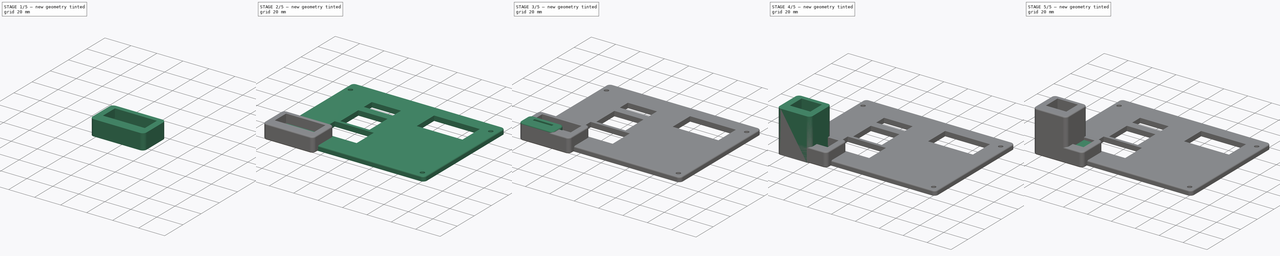
[diagram: build sequence overview — one tinted view per stage of 5, left to right]
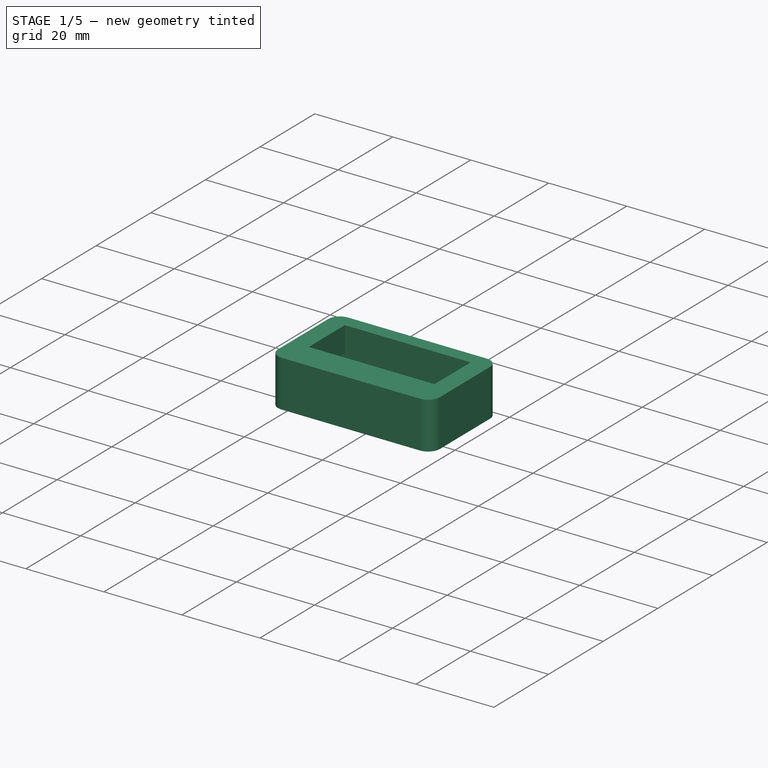
[diagram: stage 1 of 5 — iso view after this stage's code; geometry added in this stage tinted green]
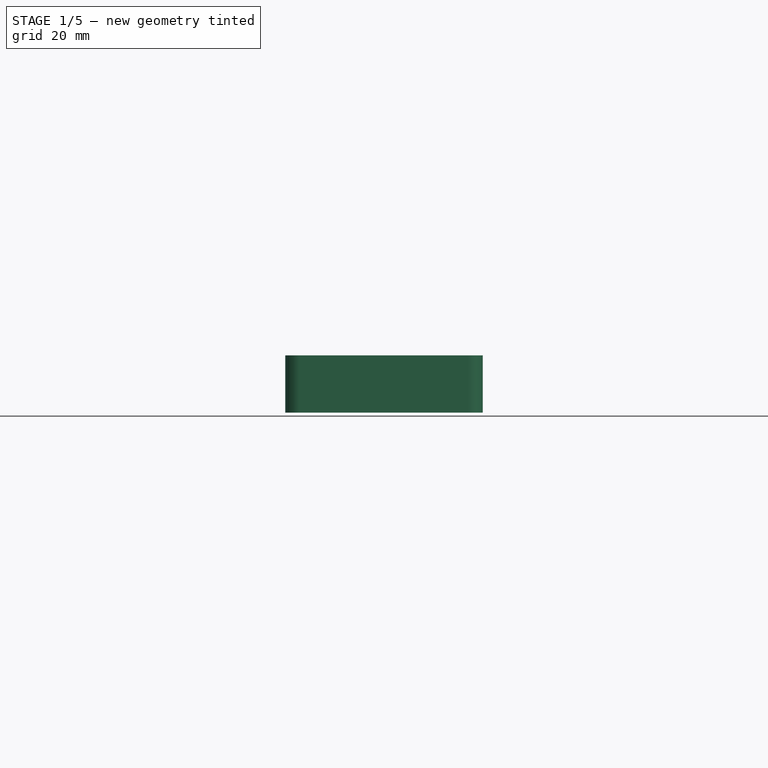
[diagram: stage 1 of 5 — front view after this stage's code; geometry added in this stage tinted green]
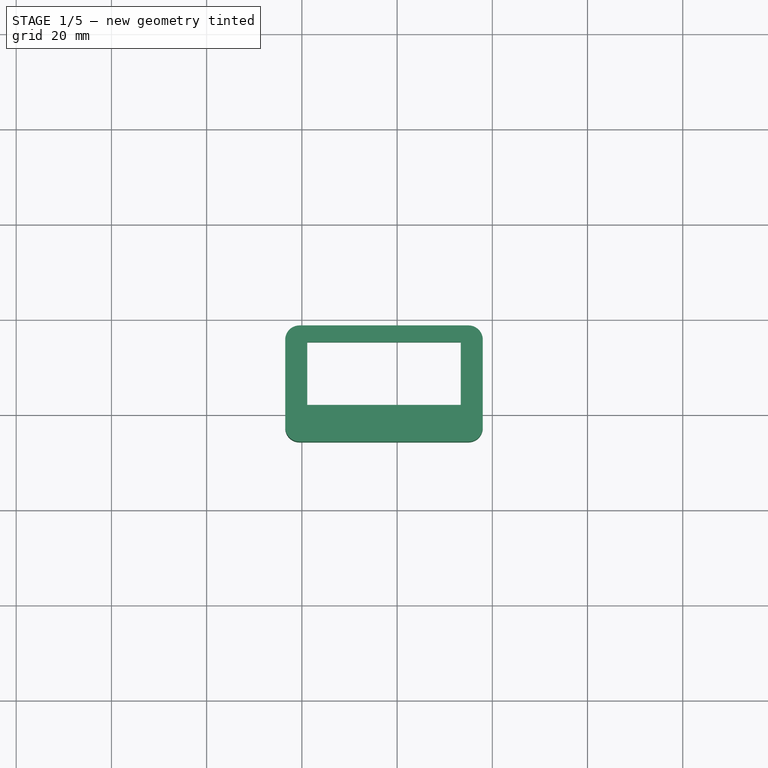
[diagram: stage 1 of 5 — top view after this stage's code; geometry added in this stage tinted green]
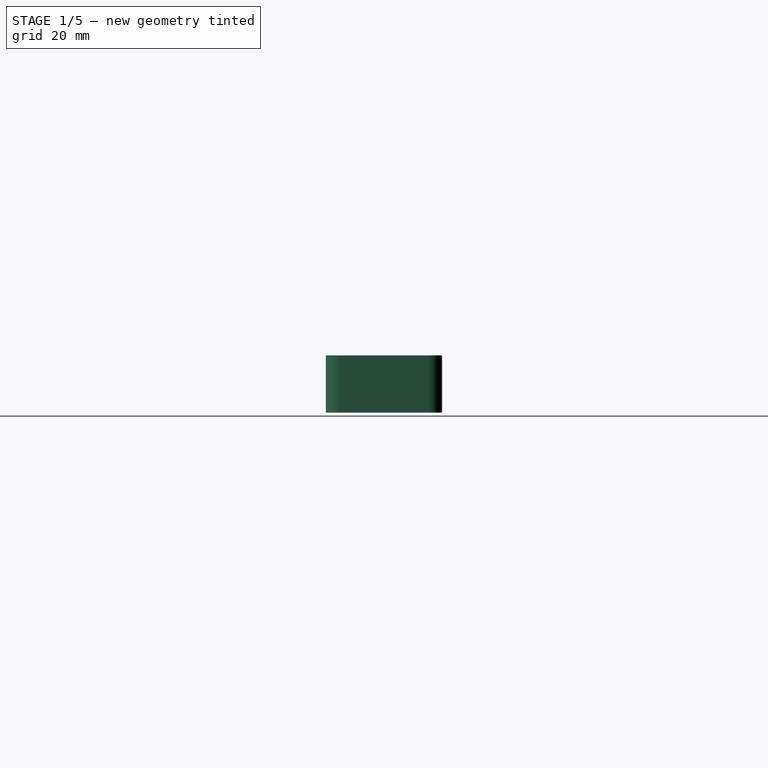
[diagram: stage 1 of 5 — right view after this stage's code; geometry added in this stage tinted green]
FCSTD DOCUMENT  (FreeCAD 0.19RUnknown)
Label: cover_rs232
License: All rights reserved
LicenseURL: http://en.wikipedia.org/wiki/All_rights_reserved
objects: Sketcher::SketchObject×16, PartDesign::Pocket×11, PartDesign::Fillet×10, PartDesign::Pad×5, PartDesign::Body×5, PartDesign::ShapeBinder×4
note: 77 computed .brp shape members not serialized (recipe doc carries the construction recipe); baked Part::Feature solids carry a one-line shape summary decoded from their .brp

FEATURE [PartDesign::Body] Body001  label="sd_body"
  Group = -> [Sketch005,Sketch006,Sketch007,Sketch008,Pad001,Pocket003,Pocket004,Pocket005,Fillet003,Fillet007]
  Origin = -> Origin001
  Placement = pos=(29.5,71.5,0) rot=(0,0,1;0rad)
  Tip = -> Fillet007
FEATURE [Sketcher::SketchObject] Sketch018  label="rs232_pcb"
  AttachmentOffset = pos=(0,0,10.5) rot=(0,0,1;0rad)
  MapMode = 5
  Placement = pos=(0,0,10.5) rot=(0,0,1;0rad)
  Support = -> [XY_Plane005]
  sketch-geometry (8):
    g0: LineSegment StartX=0 StartY=2 StartZ=0 EndX=0 EndY=0 EndZ=0
    g1: LineSegment StartX=0 StartY=0 StartZ=0 EndX=0.8 EndY=0 EndZ=0
    g2: LineSegment StartX=0.8 StartY=0 StartZ=0 EndX=0.8 EndY=-2.2 EndZ=0
    g3: LineSegment StartX=0.8 StartY=-2.2 StartZ=0 EndX=33.7 EndY=-2.2 EndZ=0
    g4: LineSegment StartX=33.7 StartY=-2.2 StartZ=0 EndX=33.7 EndY=0 EndZ=0
    g5: LineSegment StartX=33.7 StartY=0 StartZ=0 EndX=34.5 EndY=0 EndZ=0
    g6: LineSegment StartX=34.5 StartY=0 StartZ=0 EndX=34.5 EndY=2 EndZ=0
    g7: LineSegment StartX=34.5 StartY=2 StartZ=0 EndX=0 EndY=2 EndZ=0
  constraints (23):
    c: Coincident(g0,g7)
    c: Coincident(g0,g1)
    c: Coincident(g1,g2)
    c: Coincident(g2,g3)
    c: Coincident(g3,g4)
    c: Coincident(g4,g5)
    c: Coincident(g5,g6)
    c: Coincident(g6,g7)
    c: Horizontal(g1)
    c: Horizontal(g7)
    c: Horizontal(g5)
    c: Vertical(g0)
    c: Vertical(g2)
    c: Vertical(g6)
    c: Vertical(g4)
    c: DistanceX(g1,g1) = 0.8
    c: Equal(g1,g5)
    c: DistanceY(g0,g0) = 2
    c: Equal(g0,g6)
    c: DistanceX(g7,g7) = 34.5
    c: Coincident(g0,g-1)
    c: DistanceY(g2,g2) = 2.2
    c: Equal(g2,g4)
FEATURE [Sketcher::SketchObject] Sketch019  label="rs232_jack"
  ExternalGeometry = -> [Sketch018]
  MapMode = 5
  Support = -> [XY_Plane005]
  sketch-geometry (6):
    g0: LineSegment StartX=1.125 StartY=2 StartZ=0 EndX=33.375 EndY=2 EndZ=0
    g1: LineSegment StartX=33.375 StartY=2 StartZ=0 EndX=33.375 EndY=15.2 EndZ=0
    g2: LineSegment StartX=33.375 StartY=15.2 StartZ=0 EndX=1.125 EndY=15.2 EndZ=0
    g3: LineSegment StartX=1.125 StartY=15.2 StartZ=0 EndX=1.125 EndY=2 EndZ=0
    g4: GeomPoint X=17.25 Y=2 Z=0
    g5: GeomPoint X=17.25 Y=2 Z=0
  constraints (13):
    c: Coincident(g0,g1)
    c: Coincident(g1,g2)
    c: Coincident(g2,g3)
    c: Coincident(g3,g0)
    c: Horizontal(g0)
    c: Horizontal(g2)
    c: Vertical(g1)
    c: Vertical(g3)
    c: Symmetric(g-3,g-3,g5)
    c: Symmetric(g0,g0,g4)
    c: Coincident(g4,g5)
    c: DistanceX(g2,g2) = 32.25
    c: DistanceY(g1,g1) = 13.2
FEATURE [Sketcher::SketchObject] Sketch020  label="rs232_backcut"
  AttachmentOffset = pos=(0,0,5.5) rot=(0,0,1;0rad)
  ExternalGeometry = -> [Sketch019,Sketch018]
  MapMode = 5
  Placement = pos=(0,0,5.5) rot=(0,0,1;0rad)
  Support = -> [XY_Plane005]
  sketch-geometry (4):
    g0: LineSegment StartX=-1.5 StartY=-3.7 StartZ=0 EndX=36 EndY=-3.7 EndZ=0
    g1: LineSegment StartX=36 StartY=-3.7 StartZ=0 EndX=36 EndY=16.7 EndZ=0
    g2: LineSegment StartX=36 StartY=16.7 StartZ=0 EndX=-1.5 EndY=16.7 EndZ=0
    g3: LineSegment StartX=-1.5 StartY=16.7 StartZ=0 EndX=-1.5 EndY=-3.7 EndZ=0
  constraints (12):
    c: Coincident(g0,g1)
    c: Coincident(g1,g2)
    c: Coincident(g2,g3)
    c: Coincident(g3,g0)
    c: Horizontal(g0)
    c: Horizontal(g2)
    c: Vertical(g1)
    c: Vertical(g3)
    c: DistanceX(g0,g-1) = 1.5
    c: DistanceX(g-6,g0) = 1.5
    c: DistanceY(g0,g-4) = 1.5
    c: DistanceY(g-3,g2) = 1.5
FEATURE [Sketcher::SketchObject] Sketch017  label="rs232_surround"
  ExternalGeometry = -> [Sketch020]
  MapMode = 5
  Support = -> [XY_Plane005]
  sketch-geometry (4):
    g0: LineSegment StartX=-3.5 StartY=-5.7 StartZ=0 EndX=38 EndY=-5.7 EndZ=0
    g1: LineSegment StartX=38 StartY=-5.7 StartZ=0 EndX=38 EndY=18.7 EndZ=0
    g2: LineSegment StartX=38 StartY=18.7 StartZ=0 EndX=-3.5 EndY=18.7 EndZ=0
    g3: LineSegment StartX=-3.5 StartY=18.7 StartZ=0 EndX=-3.5 EndY=-5.7 EndZ=0
  constraints (12):
    c: Coincident(g0,g1)
    c: Coincident(g1,g2)
    c: Coincident(g2,g3)
    c: Coincident(g3,g0)
    c: Horizontal(g0)
    c: Horizontal(g2)
    c: Vertical(g1)
    c: Vertical(g3)
    c: DistanceX(g0,g-4) = 2
    c: DistanceY(g0,g-4) = 2
    c: DistanceY(g-3,g1) = 2
    c: DistanceX(g-3,g1) = 2
FEATURE [PartDesign::Pad] Pad005  label="rs232_surround_p"
  Direction = (1,1,1)
  Length = 12
  Length2 = 100
  Profile = -> Sketch017
  Type = 0
FEATURE [PartDesign::Pocket] Pocket011  label="rs232_backcut_c"
  BaseFeature = -> Pad005
  Length = 21.3
  Length2 = 100
  Profile = -> Sketch020
  Type = 1
FEATURE [PartDesign::Pocket] Pocket012  label="rs232_jack_c"
  BaseFeature = -> Pocket011
  Length = 5
  Length2 = 100
  Profile = -> Sketch019
  Reversed = true
  Type = 1
FEATURE [PartDesign::Pocket] Pocket013  label="rs232_pcb_c"
  BaseFeature = -> Pocket012
  Length = 12
  Length2 = 100
  Profile = -> Sketch018
  Type = 1
FEATURE [PartDesign::Fillet] Fillet010  label="rs232_edge_fillet"
  Base = -> Pocket013 [Edge2,Edge1,Edge8,Edge5]
  BaseFeature = -> Pocket013
  Radius = 3
  SupportTransform = false
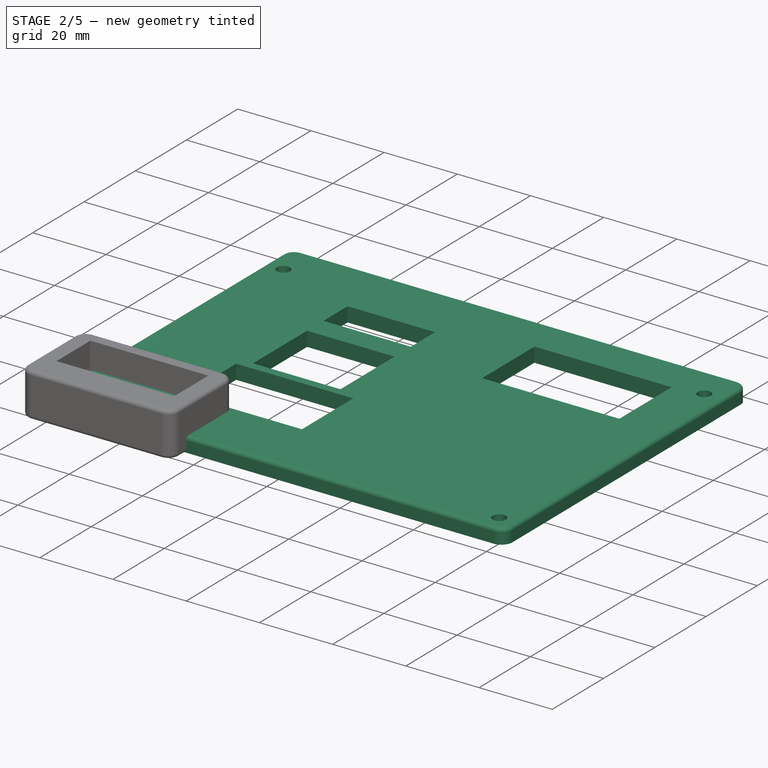
[diagram: stage 2 of 5 — iso view after this stage's code; geometry added in this stage tinted green]
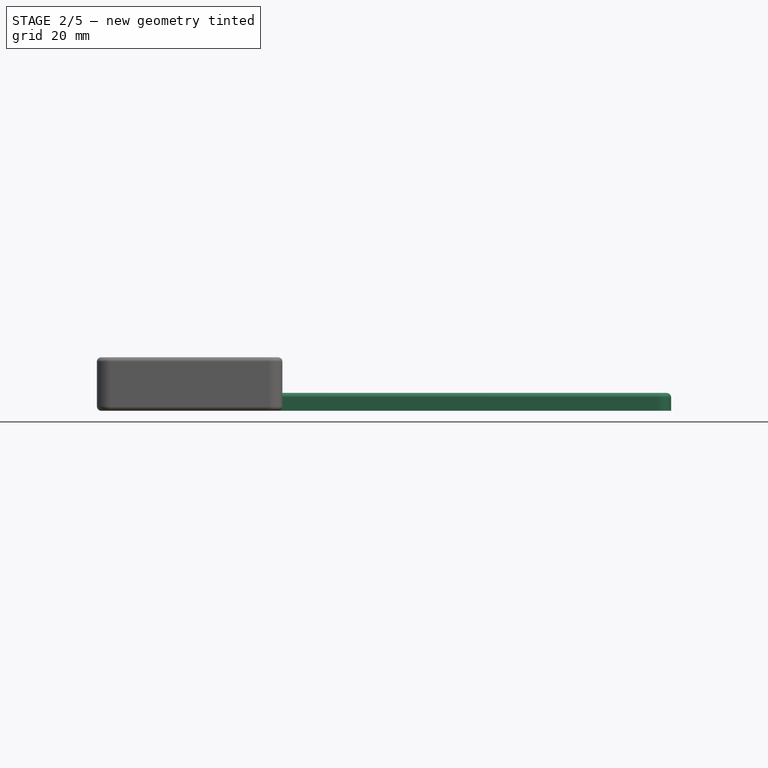
[diagram: stage 2 of 5 — front view after this stage's code; geometry added in this stage tinted green]
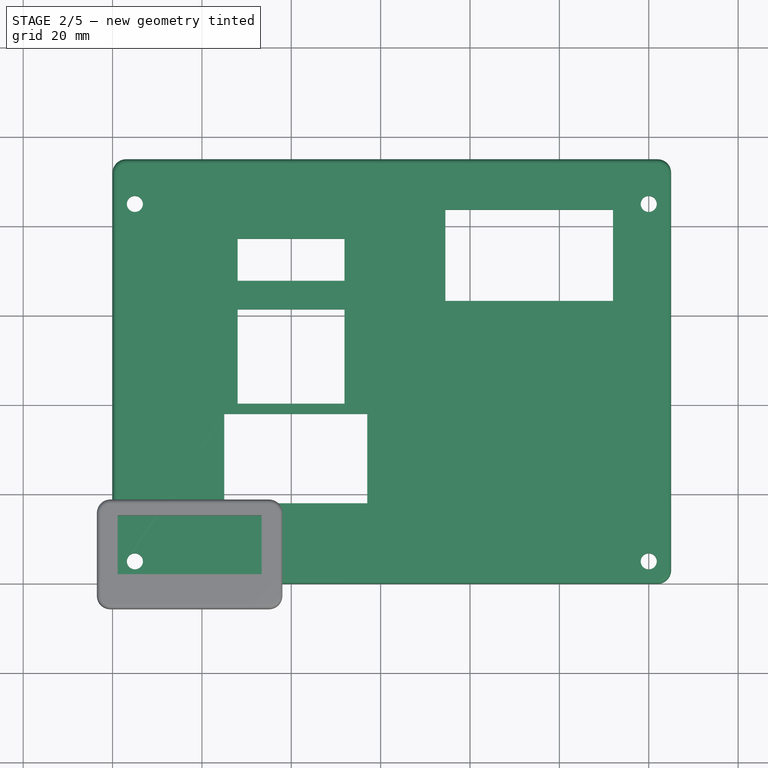
[diagram: stage 2 of 5 — top view after this stage's code; geometry added in this stage tinted green]
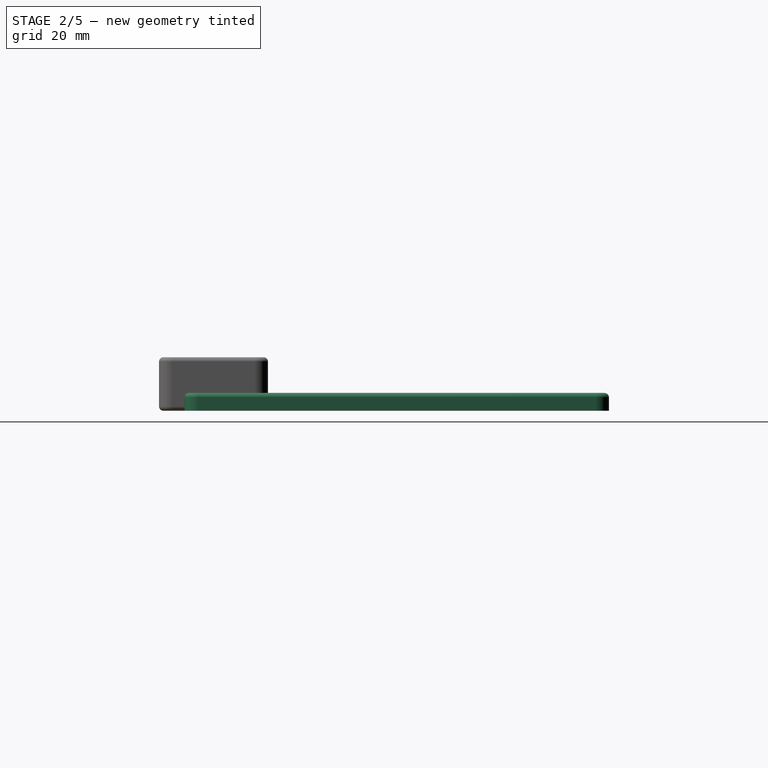
[diagram: stage 2 of 5 — right view after this stage's code; geometry added in this stage tinted green]
FEATURE [PartDesign::Fillet] Fillet011  label="rs232_face_fillet"
  Base = -> Fillet010 [Face10]
  BaseFeature = -> Fillet010
  Radius = 1
  SupportTransform = false
FEATURE [PartDesign::Body] Body005  label="rs232_body"
  Group = -> [Sketch017,Sketch018,Sketch019,Sketch020,Pad005,Pocket011,Pocket012,Pocket013,Fillet010,Fillet011]
  Origin = -> Origin005
  Placement = pos=(76,67,0) rot=(0,0,1;0rad)
  Tip = -> Fillet011
FEATURE [PartDesign::ShapeBinder] ShapeBinder003  label="rs232_binder"
  Placement = pos=(76,67,0) rot=(0,0,1;0rad)
  Support = -> [Sketch020]
  TraceSupport = true
FEATURE [Sketcher::SketchObject] Sketch013  label="cover"
  ExternalGeometry = -> [ShapeBinder,ShapeBinder001,ShapeBinder002,ShapeBinder003]
  MapMode = 5
  Support = -> [XY_Plane003]
  sketch-geometry (20):
    g0: LineSegment StartX=0 StartY=0 StartZ=0 EndX=125 EndY=0 EndZ=0
    g1: LineSegment StartX=125 StartY=0 StartZ=0 EndX=125 EndY=95 EndZ=0
    g2: LineSegment StartX=125 StartY=95 StartZ=0 EndX=0 EndY=95 EndZ=0
    g3: LineSegment StartX=0 StartY=95 StartZ=0 EndX=0 EndY=0 EndZ=0
    g4: LineSegment StartX=28 StartY=67.8 StartZ=0 EndX=51.9 EndY=67.8 EndZ=0
    g5: LineSegment StartX=51.9 StartY=67.8 StartZ=0 EndX=51.9 EndY=77.2 EndZ=0
    g6: LineSegment StartX=51.9 StartY=77.2 StartZ=0 EndX=28 EndY=77.2 EndZ=0
    g7: LineSegment StartX=28 StartY=77.2 StartZ=0 EndX=28 EndY=67.8 EndZ=0
    g8: LineSegment StartX=28 StartY=40.3 StartZ=0 EndX=51.9 EndY=40.3 EndZ=0
    g9: LineSegment StartX=51.9 StartY=40.3 StartZ=0 EndX=51.9 EndY=61.4 EndZ=0
    g10: LineSegment StartX=51.9 StartY=61.4 StartZ=0 EndX=28 EndY=61.4 EndZ=0
    g11: LineSegment StartX=28 StartY=61.4 StartZ=0 EndX=28 EndY=40.3 EndZ=0
    g12: LineSegment StartX=25 StartY=18 StartZ=0 EndX=57 EndY=18 EndZ=0
    g13: LineSegment StartX=57 StartY=18 StartZ=0 EndX=57 EndY=38 EndZ=0
    g14: LineSegment StartX=57 StartY=38 StartZ=0 EndX=25 EndY=38 EndZ=0
    g15: LineSegment StartX=25 StartY=38 StartZ=0 EndX=25 EndY=18 EndZ=0
    g16: LineSegment StartX=74.5 StartY=63.3 StartZ=0 EndX=112 EndY=63.3 EndZ=0
    g17: LineSegment StartX=112 StartY=63.3 StartZ=0 EndX=112 EndY=83.7 EndZ=0
    g18: LineSegment StartX=112 StartY=83.7 StartZ=0 EndX=74.5 EndY=83.7 EndZ=0
    g19: LineSegment StartX=74.5 StartY=83.7 StartZ=0 EndX=74.5 EndY=63.3 EndZ=0
  constraints (43):
    c: Coincident(g0,g3)
    c: Coincident(g2,g3)
    c: Coincident(g12,g15)
    c: Coincident(g14,g15)
    c: Coincident(g11,g8)
    c: Coincident(g11,g10)
    c: Coincident(g4,g7)
    c: Coincident(g6,g7)
    c: Coincident(g9,g8)
    c: Coincident(g9,g10)
    c: Coincident(g5,g4)
    c: Coincident(g6,g5)
    c: Coincident(g12,g13)
    c: Coincident(g13,g14)
    c: Coincident(g16,g19)
    c: Coincident(g18,g19)
    c: Coincident(g16,g17)
    c: Coincident(g17,g18)
    c: Coincident(g1,g0)
    c: Coincident(g2,g1)
    c: Coincident(g6,g-7)
    c: Coincident(g4,g-8)
    c: Coincident(g5,g-7)
    c: Coincident(g4,g-8)
    c: Coincident(g10,g-5)
    c: Coincident(g9,g-5)
    c: Coincident(g8,g-6)
    c: Coincident(g8,g-6)
    c: Coincident(g14,g-4)
    c: Coincident(g13,g-4)
    c: Coincident(g12,g-3)
    c: Coincident(g12,g-3)
    c: Coincident(g18,g-9)
    c: Coincident(g17,g-9)
    c: Coincident(g16,g-10)
    c: Coincident(g16,g-10)
    c: Coincident(g0,g-1)
    c: Vertical(g3)
    c: Vertical(g1)
    c: Horizontal(g2)
    c: Horizontal(g0)
    c: DistanceY(g3,g3) = 95
    c: DistanceX(g0,g0) = 125
FEATURE [PartDesign::Pad] Pad003  label="cover_p"
  Direction = (1,1,1)
  Length = 4
  Length2 = 100
  Profile = -> Sketch013
  Type = 0
FEATURE [Sketcher::SketchObject] Sketch016  label="holes"
  ExternalGeometry = -> [Sketch013]
  MapMode = 5
  Support = -> [XY_Plane003]
  sketch-geometry (4):
    g0: Circle CenterX=5 CenterY=5 CenterZ=0 NormalX=0 NormalY=0 NormalZ=1 AngleXU=0 Radius=1.8
    g1: Circle CenterX=120 CenterY=5 CenterZ=0 NormalX=0 NormalY=0 NormalZ=1 AngleXU=0 Radius=1.8
    g2: Circle CenterX=120 CenterY=85 CenterZ=0 NormalX=0 NormalY=0 NormalZ=1 AngleXU=0 Radius=1.8
    g3: Circle CenterX=5 CenterY=85 CenterZ=0 NormalX=0 NormalY=0 NormalZ=1 AngleXU=0 Radius=1.8
  constraints (12):
    c: Diameter(g0) = 3.6
    c: Equal(g0,g1) = 3.6
    c: Equal(g0,g3) = 3.6
    c: DistanceY(g-1,g0) = 5
    c: DistanceX(g-1,g0) = 5
    c: DistanceY(g-4,g1) = 5
    c: DistanceX(g1,g-4) = 5
    c: DistanceY(g2,g-4) = 10
    c: DistanceX(g2,g-4) = 5
    c: DistanceY(g3,g-3) = 10
    c: DistanceX(g-3,g3) = 5
    c: Equal(g2,g3)
FEATURE [PartDesign::Pocket] Pocket010  label="holes_c"
  BaseFeature = -> Pad003
  Length = 5
  Length2 = 100
  Profile = -> Sketch016
  Reversed = true
  Type = 1
FEATURE [PartDesign::Fillet] Fillet  label="cover_edge_fillet"
  Base = -> Pocket010 [Edge1,Edge2,Edge8,Edge5]
  BaseFeature = -> Pocket010
  Radius = 3
  SupportTransform = false
FEATURE [PartDesign::Fillet] Fillet009  label="cover face_fillet"
  Base = -> Fillet [Edge4]
  BaseFeature = -> Fillet
  Radius = 1
  SupportTransform = false
FEATURE [PartDesign::Body] Body003  label="cover_body"
  Group = -> [Sketch013,Pad003,Sketch016,Pocket010,ShapeBinder,ShapeBinder001,ShapeBinder002,Fillet,Fillet009,ShapeBinder003]
  Origin = -> Origin003
  Tip = -> Fillet009
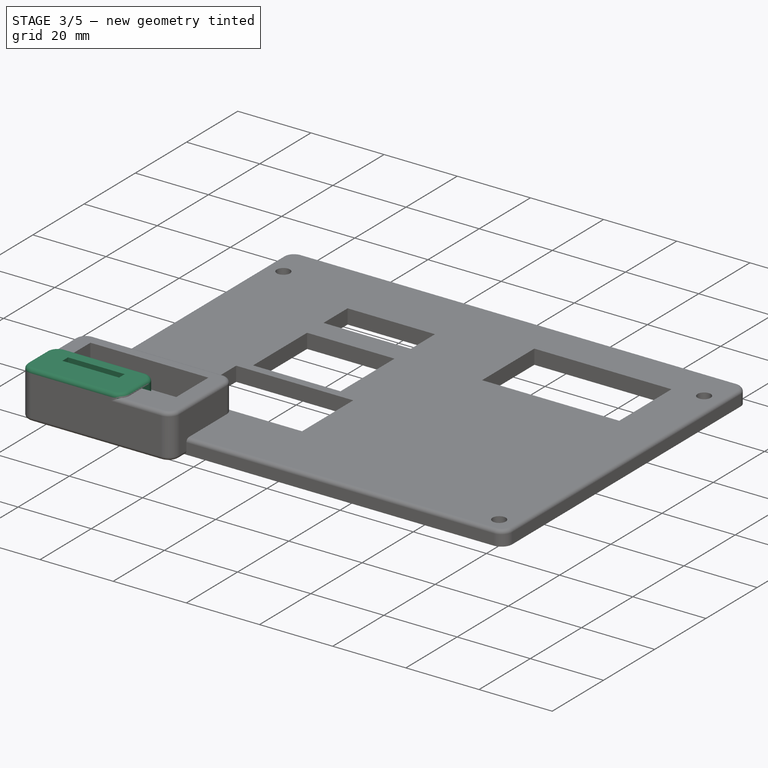
[diagram: stage 3 of 5 — iso view after this stage's code; geometry added in this stage tinted green]
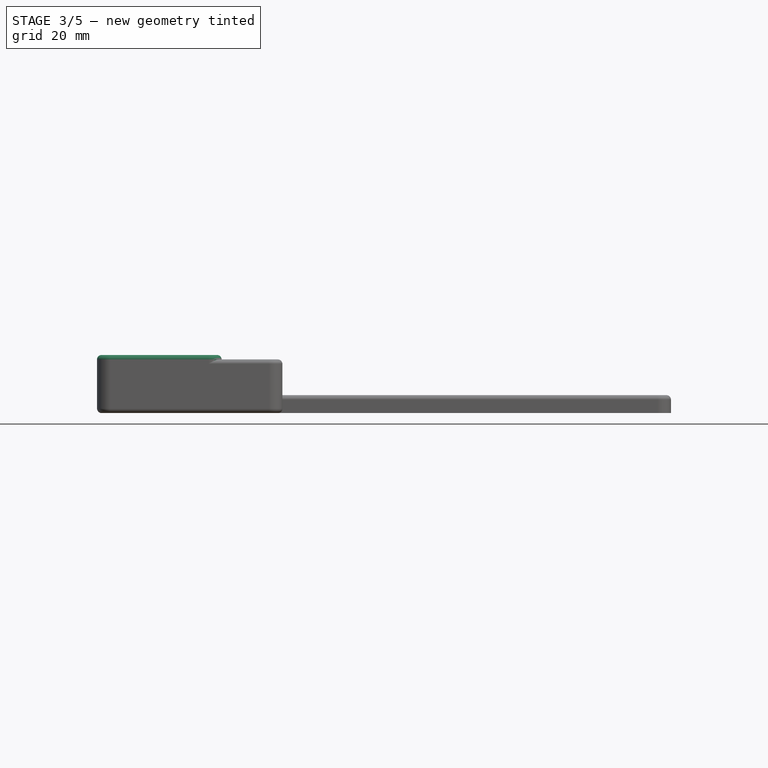
[diagram: stage 3 of 5 — front view after this stage's code; geometry added in this stage tinted green]
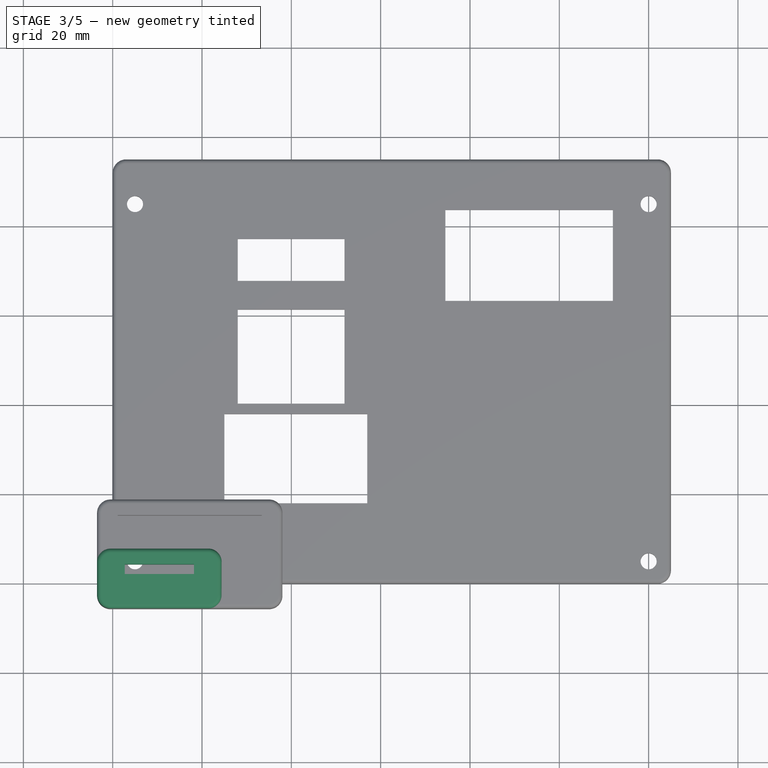
[diagram: stage 3 of 5 — top view after this stage's code; geometry added in this stage tinted green]
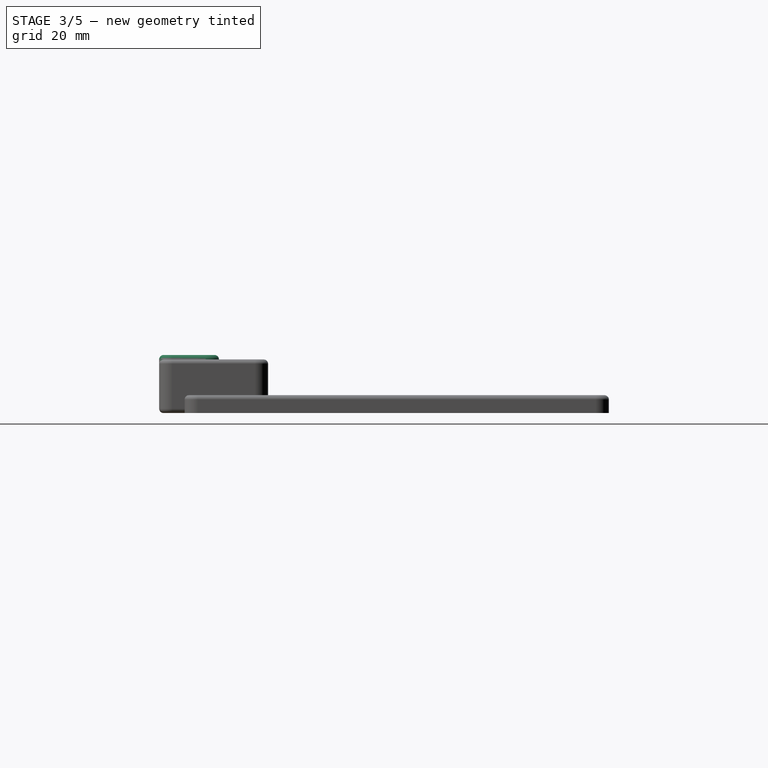
[diagram: stage 3 of 5 — right view after this stage's code; geometry added in this stage tinted green]
FEATURE [Sketcher::SketchObject] Sketch005  label="sd_pcb_sk"
  AttachmentOffset = pos=(0,0,12) rot=(0,0,1;0rad)
  MapMode = 5
  Placement = pos=(0,0,12) rot=(0,0,1;0rad)
  Support = -> [XY_Plane001]
  sketch-geometry (8):
    g0: LineSegment StartX=0 StartY=2 StartZ=0 EndX=20.9 EndY=2 EndZ=0
    g1: LineSegment StartX=20.9 StartY=2 StartZ=0 EndX=20.9 EndY=2e-16 EndZ=0
    g2: LineSegment StartX=20.1 StartY=2e-16 StartZ=0 EndX=20.1 EndY=-2.2 EndZ=0
    g3: LineSegment StartX=0.8 StartY=-2.2 StartZ=0 EndX=0.8 EndY=0 EndZ=0
    g4: LineSegment StartX=0.8 StartY=0 StartZ=0 EndX=0 EndY=0 EndZ=0
    g5: LineSegment StartX=0 StartY=0 StartZ=0 EndX=0 EndY=2 EndZ=0
    g6: LineSegment StartX=20.1 StartY=2e-16 StartZ=0 EndX=20.9 EndY=2e-16 EndZ=0
    g7: LineSegment StartX=20.1 StartY=-2.2 StartZ=0 EndX=0.8 EndY=-2.2 EndZ=0
  constraints (23):
    c: Coincident(g3,g4)
    c: Coincident(g4,g5)
    c: Coincident(g0,g5)
    c: Coincident(g0,g1)
    c: Horizontal(g0)
    c: Horizontal(g4)
    c: Vertical(g3)
    c: Vertical(g2)
    c: Vertical(g1)
    c: Vertical(g5)
    c: DistanceY(g5,g5) = 2
    c: DistanceX(g4,g4) = 0.8
    c: DistanceY(g3,g3) = 2.2
    c: DistanceX(g0,g0) = 20.9
    c: Coincident(g3,g7)
    c: Coincident(g2,g7)
    c: Coincident(g2,g6)
    c: Coincident(g1,g6)
    c: Horizontal(g7)
    c: Horizontal(g6)
    c: Equal(g4,g6)
    c: Equal(g3,g2)
    c: Coincident(g-1,g4)
FEATURE [Sketcher::SketchObject] Sketch006  label="sd_jack_sk"
  ExternalGeometry = -> [Sketch005]
  MapMode = 5
  Support = -> [XY_Plane001]
  sketch-geometry (6):
    g0: LineSegment StartX=2.7 StartY=2 StartZ=0 EndX=18.2 EndY=2 EndZ=0
    g1: LineSegment StartX=18.2 StartY=2 StartZ=0 EndX=18.2 EndY=4.2 EndZ=0
    g2: LineSegment StartX=18.2 StartY=4.2 StartZ=0 EndX=2.7 EndY=4.2 EndZ=0
    g3: LineSegment StartX=2.7 StartY=4.2 StartZ=0 EndX=2.7 EndY=2 EndZ=0
    g4: GeomPoint X=10.45 Y=2 Z=0
    g5: GeomPoint X=10.45 Y=2 Z=0
  constraints (13):
    c: Coincident(g0,g1)
    c: Coincident(g1,g2)
    c: Coincident(g2,g3)
    c: Coincident(g3,g0)
    c: Horizontal(g0)
    c: Horizontal(g2)
    c: Vertical(g1)
    c: Vertical(g3)
    c: DistanceX(g2,g2) = 15.5
    c: DistanceY(g3,g3) = 2.2
    c: Symmetric(g-3,g-3,g5)
    c: Symmetric(g0,g0,g4)
    c: Coincident(g4,g5)
FEATURE [Sketcher::SketchObject] Sketch007  label="sd_backcut"
  AttachmentOffset = pos=(0,0,7) rot=(0,0,1;0rad)
  ExternalGeometry = -> [Sketch005,Sketch006]
  MapMode = 5
  Placement = pos=(0,0,7) rot=(0,0,1;0rad)
  Support = -> [XY_Plane001]
  sketch-geometry (4):
    g0: LineSegment StartX=-1.5 StartY=-3.7 StartZ=0 EndX=22.4 EndY=-3.7 EndZ=0
    g1: LineSegment StartX=22.4 StartY=-3.7 StartZ=0 EndX=22.4 EndY=5.7 EndZ=0
    g2: LineSegment StartX=22.4 StartY=5.7 StartZ=0 EndX=-1.5 EndY=5.7 EndZ=0
    g3: LineSegment StartX=-1.5 StartY=5.7 StartZ=0 EndX=-1.5 EndY=-3.7 EndZ=0
  constraints (12):
    c: Coincident(g0,g1)
    c: Coincident(g1,g2)
    c: Coincident(g2,g3)
    c: Coincident(g3,g0)
    c: Horizontal(g0)
    c: Horizontal(g2)
    c: Vertical(g1)
    c: Vertical(g3)
    c: DistanceY(g-6,g2) = 1.5
    c: DistanceX(g0,g-1) = 1.5
    c: DistanceX(g-4,g0) = 1.5
    c: DistanceY(g0,g-5) = 1.5
FEATURE [Sketcher::SketchObject] Sketch008  label="sd_surround"
  ExternalGeometry = -> [Sketch007]
  MapMode = 5
  Support = -> [XY_Plane001]
  sketch-geometry (4):
    g0: LineSegment StartX=-3.5 StartY=-5.7 StartZ=0 EndX=24.4 EndY=-5.7 EndZ=0
    g1: LineSegment StartX=24.4 StartY=-5.7 StartZ=0 EndX=24.4 EndY=7.7 EndZ=0
    g2: LineSegment StartX=24.4 StartY=7.7 StartZ=0 EndX=-3.5 EndY=7.7 EndZ=0
    g3: LineSegment StartX=-3.5 StartY=7.7 StartZ=0 EndX=-3.5 EndY=-5.7 EndZ=0
  constraints (12):
    c: Coincident(g0,g1)
    c: Coincident(g1,g2)
    c: Coincident(g2,g3)
    c: Coincident(g3,g0)
    c: Horizontal(g0)
    c: Horizontal(g2)
    c: Vertical(g1)
    c: Vertical(g3)
    c: DistanceX(g0,g-4) = 2
    c: DistanceY(g0,g-4) = 2
    c: DistanceX(g-3,g1) = 2
    c: DistanceY(g-3,g1) = 2
FEATURE [PartDesign::Pad] Pad001  label="sd_surround_p"
  Direction = (1,1,1)
  Length = 13
  Length2 = 100
  Profile = -> Sketch008
  Type = 0
FEATURE [PartDesign::Pocket] Pocket003  label="sd_pcb_c"
  BaseFeature = -> Pad001
  Length = 5
  Length2 = 100
  Profile = -> Sketch005
  Type = 1
FEATURE [PartDesign::Pocket] Pocket004  label="sd_jack_c"
  BaseFeature = -> Pocket003
  Length = 5
  Length2 = 100
  Profile = -> Sketch006
  Reversed = true
  Type = 1
FEATURE [PartDesign::Pocket] Pocket005  label="sd_backcut_c"
  BaseFeature = -> Pocket004
  Length = 12
  Length2 = 100
  Profile = -> Sketch007
  Type = 1
FEATURE [PartDesign::Fillet] Fillet003  label="sd_edge_fillet"
  Base = -> Pocket005 [Edge1,Edge5,Edge8,Edge2]
  BaseFeature = -> Pocket005
  Radius = 3
  SupportTransform = false
FEATURE [PartDesign::Body] Body  label="eth_body"
  Group = -> [Sketch004,Sketch003,Sketch002,Sketch,Pad,Pocket,Pocket001,Pocket002,Fillet002,Fillet006]
  Origin = -> Origin
  Placement = pos=(29.5,44,0) rot=(0,0,1;0rad)
  Tip = -> Fillet006
FEATURE [PartDesign::Fillet] Fillet007  label="sd_face_fillet"
  Base = -> Fillet003 [Face10]
  BaseFeature = -> Fillet003
  Radius = 1
  SupportTransform = false
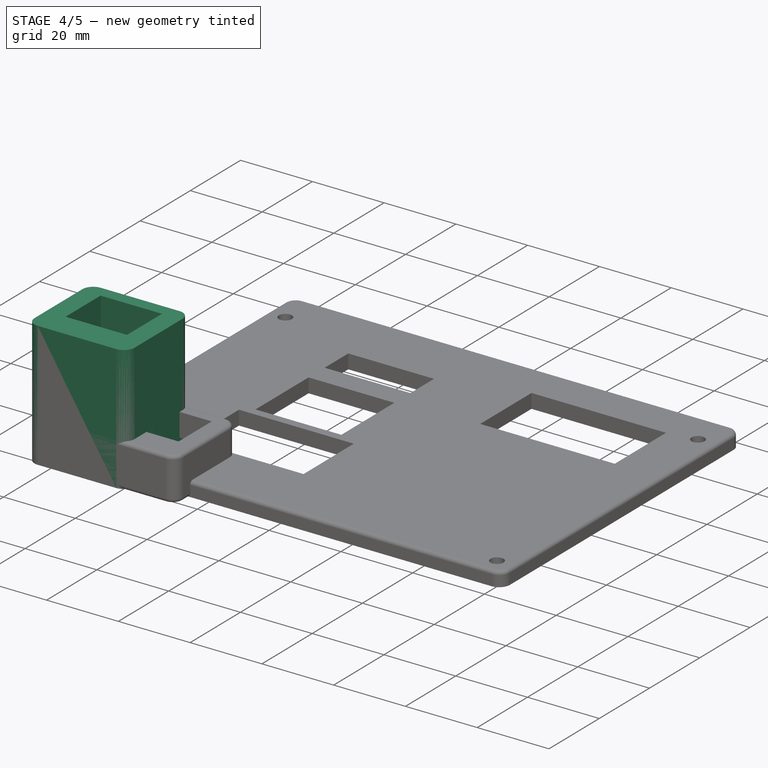
[diagram: stage 4 of 5 — iso view after this stage's code; geometry added in this stage tinted green]
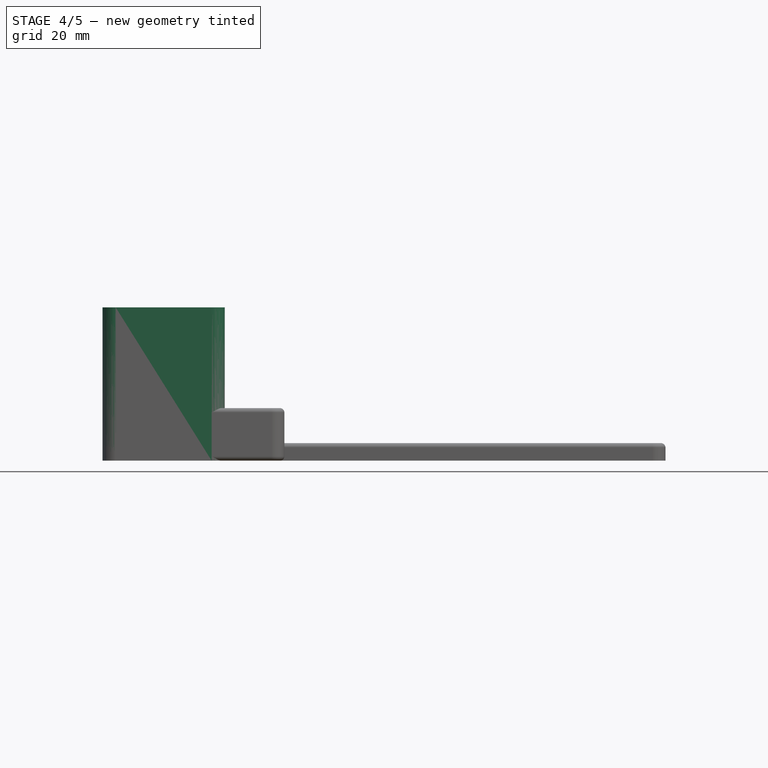
[diagram: stage 4 of 5 — front view after this stage's code; geometry added in this stage tinted green]
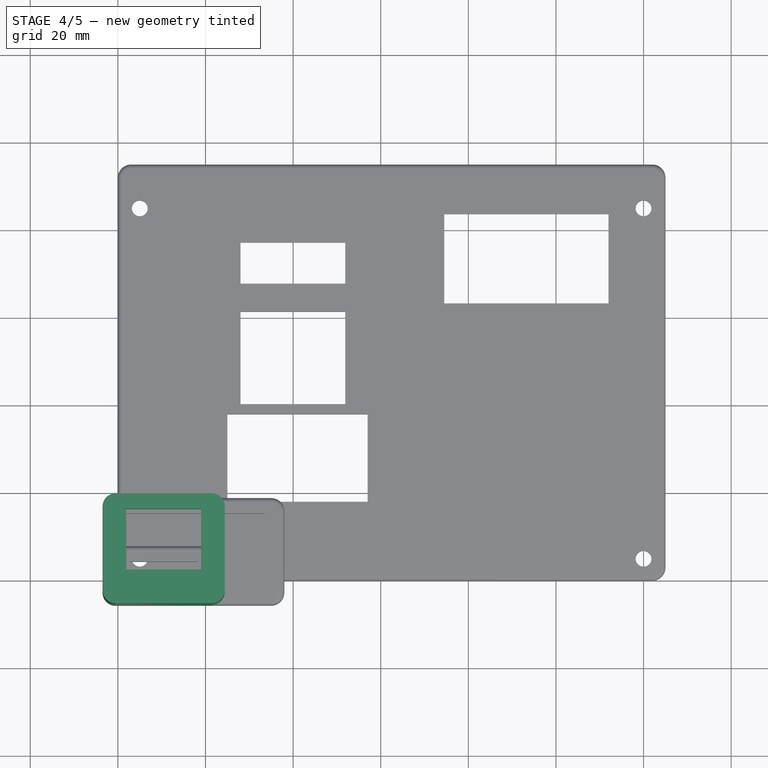
[diagram: stage 4 of 5 — top view after this stage's code; geometry added in this stage tinted green]
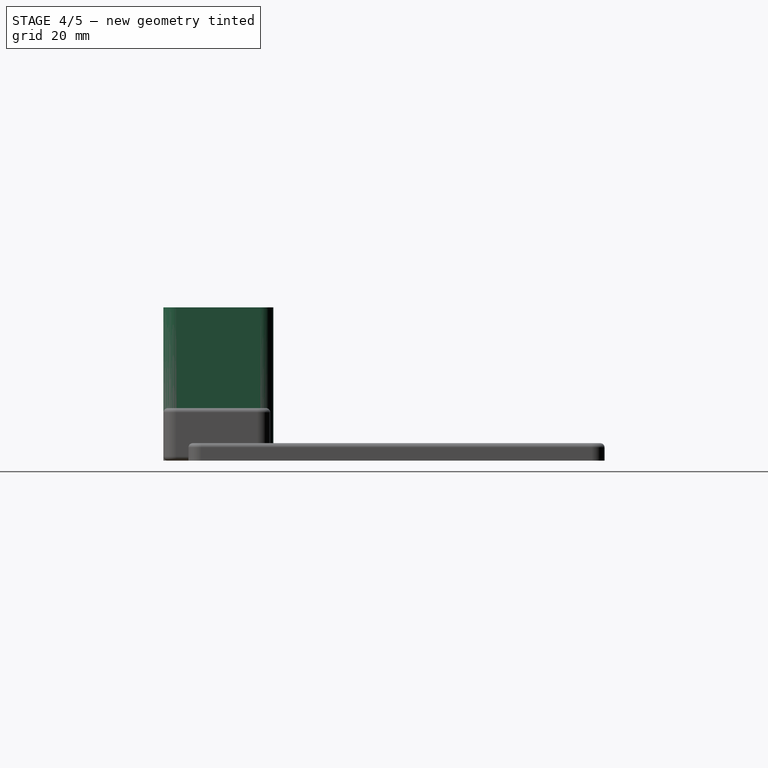
[diagram: stage 4 of 5 — right view after this stage's code; geometry added in this stage tinted green]
FEATURE [Sketcher::SketchObject] Sketch003  label="eth_pcb_sk"
  AttachmentOffset = pos=(0,0,32) rot=(0,0,1;0rad)
  MapMode = 5
  Placement = pos=(0,0,32) rot=(0,0,1;0rad)
  Support = -> [XY_Plane]
  sketch-geometry (8):
    g0: LineSegment StartX=0 StartY=2 StartZ=0 EndX=20.9 EndY=2 EndZ=0
    g1: LineSegment StartX=20.9 StartY=2 StartZ=0 EndX=20.9 EndY=0 EndZ=0
    g2: LineSegment StartX=20.9 StartY=0 StartZ=0 EndX=20.1 EndY=-2e-16 EndZ=0
    g3: LineSegment StartX=20.1 StartY=-2e-16 StartZ=0 EndX=20.1 EndY=-2.2 EndZ=0
    g4: LineSegment StartX=20.1 StartY=-2.2 StartZ=0 EndX=0.8 EndY=-2.2 EndZ=0
    g5: LineSegment StartX=0.8 StartY=-2.2 StartZ=0 EndX=0.8 EndY=0 EndZ=0
    g6: LineSegment StartX=0.8 StartY=0 StartZ=0 EndX=0 EndY=0 EndZ=0
    g7: LineSegment StartX=0 StartY=0 StartZ=0 EndX=0 EndY=2 EndZ=0
  constraints (23):
    c: Coincident(g7,g0)
    c: Coincident(g7,g6)
    c: Coincident(g6,g5)
    c: Coincident(g5,g4)
    c: Coincident(g3,g4)
    c: Coincident(g2,g3)
    c: Coincident(g1,g2)
    c: Coincident(g0,g1)
    c: Horizontal(g0)
    c: Horizontal(g4)
    c: Horizontal(g6)
    c: Vertical(g7)
    c: Vertical(g1)
    c: Vertical(g3)
    c: Vertical(g5)
    c: Equal(g5,g3)
    c: DistanceY(g4,g5) = 2.2
    c: Equal(g6,g2)
    c: DistanceX(g6,g5) = 0.8
    c: Equal(g7,g1)
    c: DistanceY(g7,g7) = 2
    c: DistanceX(g0,g0) = 20.9
    c: Coincident(g6,g-1)
FEATURE [Sketcher::SketchObject] Sketch002  label="eth_jack_sk"
  ExternalGeometry = -> [Sketch003]
  MapMode = 5
  Support = -> [XY_Plane]
  sketch-geometry (6):
    g0: LineSegment StartX=1.9 StartY=2 StartZ=0 EndX=19 EndY=2 EndZ=0
    g1: LineSegment StartX=19 StartY=2 StartZ=0 EndX=19 EndY=15.9 EndZ=0
    g2: LineSegment StartX=19 StartY=15.9 StartZ=0 EndX=1.9 EndY=15.9 EndZ=0
    g3: LineSegment StartX=1.9 StartY=15.9 StartZ=0 EndX=1.9 EndY=2 EndZ=0
    g4: GeomPoint X=10.45 Y=2 Z=0
    g5: GeomPoint X=10.45 Y=2 Z=0
  constraints (13):
    c: Coincident(g0,g1)
    c: Coincident(g1,g2)
    c: Coincident(g2,g3)
    c: Coincident(g3,g0)
    c: Horizontal(g0)
    c: Horizontal(g2)
    c: Vertical(g1)
    c: Vertical(g3)
    c: DistanceX(g2,g2) = 17.1
    c: DistanceY(g1,g1) = 13.9
    c: Symmetric(g0,g0,g4)
    c: Symmetric(g-3,g-3,g5)
    c: Coincident(g5,g4)
FEATURE [Sketcher::SketchObject] Sketch  label="eth_backcut"
  AttachmentOffset = pos=(0,0,27) rot=(0,0,1;0rad)
  ExternalGeometry = -> [Sketch003,Sketch002]
  MapMode = 5
  Placement = pos=(0,0,27) rot=(0,0,1;0rad)
  Support = -> [XY_Plane]
  sketch-geometry (4):
    g0: LineSegment StartX=-1.5 StartY=-3.7 StartZ=0 EndX=22.4 EndY=-3.7 EndZ=0
    g1: LineSegment StartX=22.4 StartY=-3.7 StartZ=0 EndX=22.4 EndY=17.4 EndZ=0
    g2: LineSegment StartX=22.4 StartY=17.4 StartZ=0 EndX=-1.5 EndY=17.4 EndZ=0
    g3: LineSegment StartX=-1.5 StartY=17.4 StartZ=0 EndX=-1.5 EndY=-3.7 EndZ=0
  constraints (12):
    c: Coincident(g0,g1)
    c: Coincident(g1,g2)
    c: Coincident(g2,g3)
    c: Coincident(g3,g0)
    c: Horizontal(g0)
    c: Horizontal(g2)
    c: Vertical(g1)
    c: Vertical(g3)
    c: DistanceY(g0,g-5) = 1.5
    c: DistanceX(g0,g-1) = 1.5
    c: DistanceY(g-6,g2) = 1.5
    c: DistanceX(g-4,g0) = 1.5
FEATURE [Sketcher::SketchObject] Sketch004  label="eth_surround"
  ExternalGeometry = -> [Sketch]
  MapMode = 5
  Support = -> [XY_Plane]
  sketch-geometry (4):
    g0: LineSegment StartX=-3.5 StartY=-5.7 StartZ=0 EndX=24.4 EndY=-5.7 EndZ=0
    g1: LineSegment StartX=24.4 StartY=-5.7 StartZ=0 EndX=24.4 EndY=19.4 EndZ=0
    g2: LineSegment StartX=24.4 StartY=19.4 StartZ=0 EndX=-3.5 EndY=19.4 EndZ=0
    g3: LineSegment StartX=-3.5 StartY=19.4 StartZ=0 EndX=-3.5 EndY=-5.7 EndZ=0
  constraints (12):
    c: Coincident(g0,g1)
    c: Coincident(g1,g2)
    c: Coincident(g2,g3)
    c: Coincident(g3,g0)
    c: Horizontal(g0)
    c: Horizontal(g2)
    c: Vertical(g1)
    c: Vertical(g3)
    c: DistanceY(g0,g-3) = 2
    c: DistanceX(g0,g-3) = 2
    c: DistanceY(g-4,g1) = 2
    c: DistanceX(g-4,g1) = 2
FEATURE [PartDesign::Pad] Pad  label="eth_surround_p"
  Direction = (1,1,1)
  Length = 35
  Length2 = 100
  Profile = -> Sketch004
  Type = 0
FEATURE [PartDesign::Pocket] Pocket  label="eth_pcb_c"
  BaseFeature = -> Pad
  Length = 5
  Length2 = 100
  Profile = -> Sketch003
  Type = 1
FEATURE [PartDesign::Pocket] Pocket001  label="eth_jack_c"
  BaseFeature = -> Pocket
  Length = 5
  Length2 = 100
  Profile = -> Sketch002
  Reversed = true
  Type = 1
FEATURE [PartDesign::Pocket] Pocket002  label="eth_backcut_c"
  BaseFeature = -> Pocket001
  Length = 5
  Length2 = 100
  Profile = -> Sketch
  Type = 1
FEATURE [PartDesign::Fillet] Fillet002  label="eth_edge_fillet"
  Base = -> Pocket002 [Edge1,Edge2,Edge8,Edge5]
  BaseFeature = -> Pocket002
  Radius = 3
  SupportTransform = false
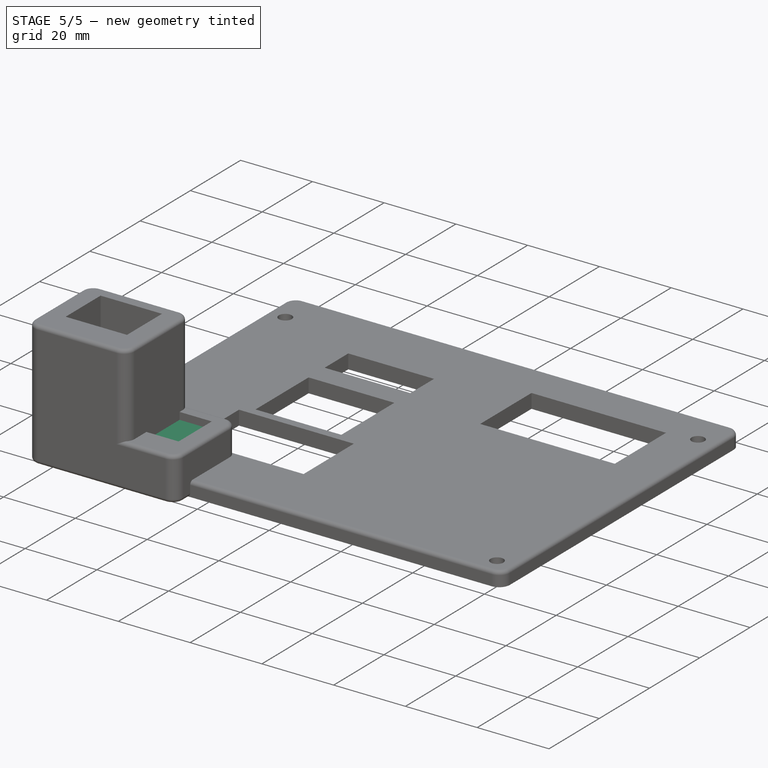
[diagram: stage 5 of 5 — iso view after this stage's code; geometry added in this stage tinted green]
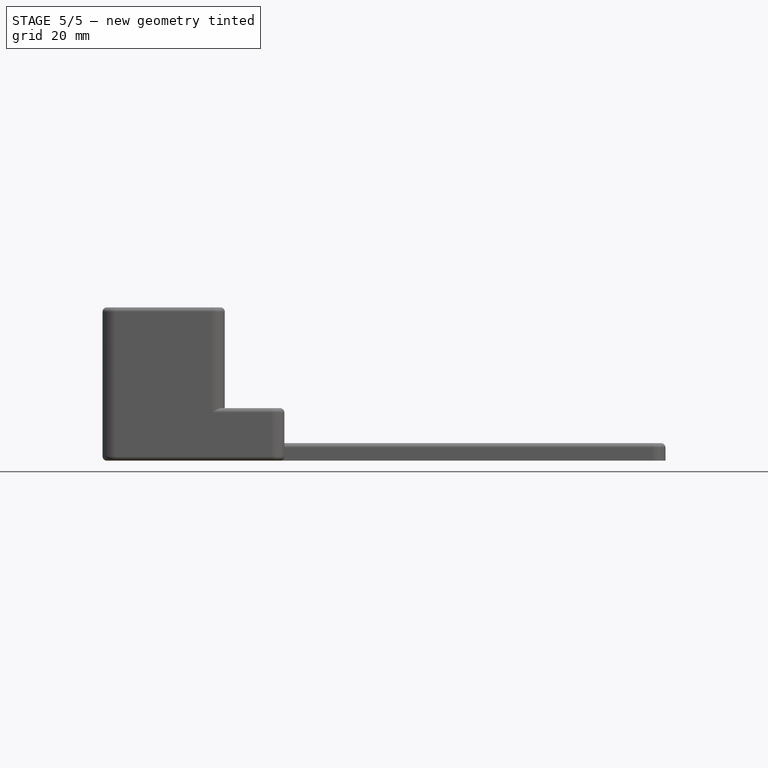
[diagram: stage 5 of 5 — front view after this stage's code; geometry added in this stage tinted green]
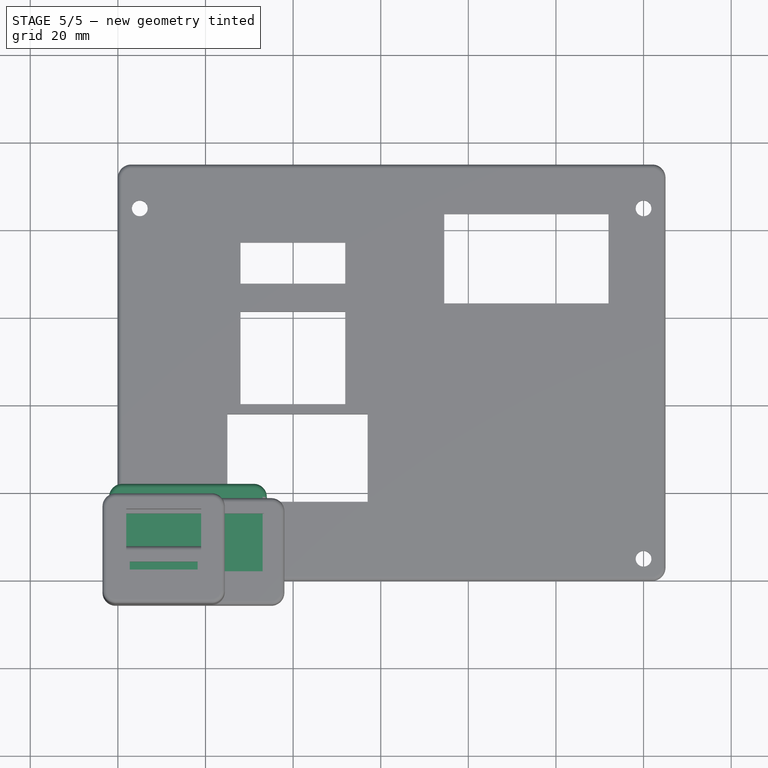
[diagram: stage 5 of 5 — top view after this stage's code; geometry added in this stage tinted green]
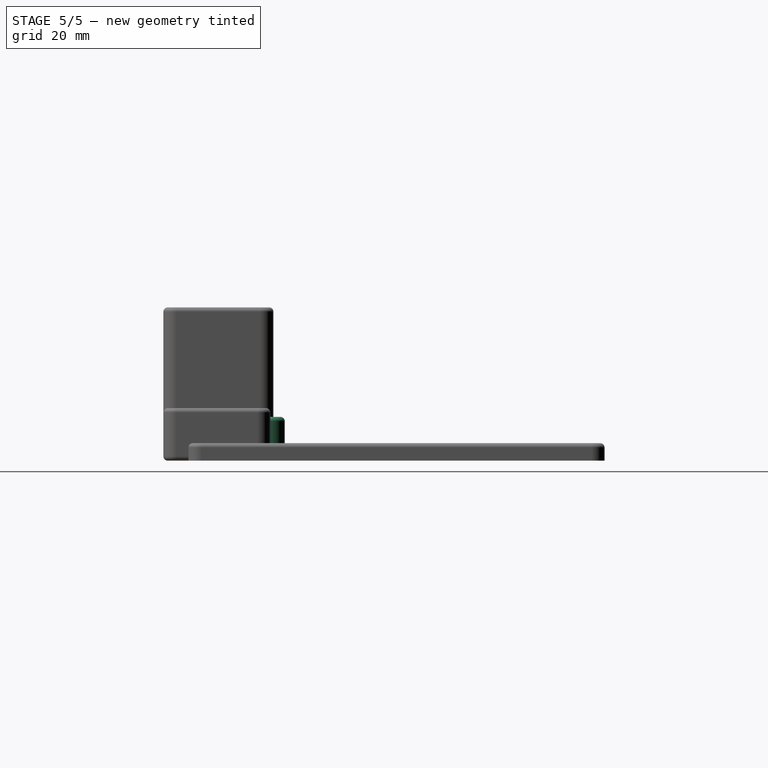
[diagram: stage 5 of 5 — right view after this stage's code; geometry added in this stage tinted green]
FEATURE [Sketcher::SketchObject] Sketch014  label="cap_cut"
  AttachmentOffset = pos=(0,0,7) rot=(0,0,1;0rad)
  MapMode = 5
  Placement = pos=(0,0,7) rot=(0,0,1;0rad)
  Support = -> [XY_Plane004]
  sketch-geometry (4):
    g0: LineSegment StartX=0 StartY=0 StartZ=0 EndX=32 EndY=0 EndZ=0
    g1: LineSegment StartX=32 StartY=0 StartZ=0 EndX=32 EndY=20 EndZ=0
    g2: LineSegment StartX=32 StartY=20 StartZ=0 EndX=0 EndY=20 EndZ=0
    g3: LineSegment StartX=0 StartY=20 StartZ=0 EndX=0 EndY=0 EndZ=0
  constraints (11):
    c: Coincident(g0,g1)
    c: Coincident(g1,g2)
    c: Coincident(g2,g3)
    c: Coincident(g3,g0)
    c: Horizontal(g0)
    c: Horizontal(g2)
    c: Vertical(g1)
    c: Vertical(g3)
    c: DistanceX(g2,g2) = 32
    c: DistanceY(g1,g1) = 20
    c: Coincident(g0,g-1)
FEATURE [Sketcher::SketchObject] Sketch015  label="cap_surround"
  ExternalGeometry = -> [Sketch014]
  MapMode = 5
  Support = -> [XY_Plane004]
  sketch-geometry (4):
    g0: LineSegment StartX=-2 StartY=-2 StartZ=0 EndX=34 EndY=-2 EndZ=0
    g1: LineSegment StartX=34 StartY=-2 StartZ=0 EndX=34 EndY=22 EndZ=0
    g2: LineSegment StartX=34 StartY=22 StartZ=0 EndX=-2 EndY=22 EndZ=0
    g3: LineSegment StartX=-2 StartY=22 StartZ=0 EndX=-2 EndY=-2 EndZ=0
  constraints (12):
    c: Coincident(g0,g1)
    c: Coincident(g1,g2)
    c: Coincident(g2,g3)
    c: Coincident(g3,g0)
    c: Horizontal(g0)
    c: Horizontal(g2)
    c: Vertical(g1)
    c: Vertical(g3)
    c: DistanceX(g0,g-1) = 2
    c: DistanceY(g0,g-1) = 2
    c: DistanceX(g-4,g1) = 2
    c: DistanceY(g-4,g1) = 2
FEATURE [PartDesign::Pad] Pad004  label="cap_surround_p"
  Direction = (1,1,1)
  Length = 10
  Length2 = 100
  Profile = -> Sketch015
  Type = 0
FEATURE [PartDesign::Pocket] Pocket009  label="cap_cut_c"
  BaseFeature = -> Pad004
  Length = 5
  Length2 = 100
  Profile = -> Sketch014
  Type = 1
FEATURE [PartDesign::ShapeBinder] ShapeBinder  label="cap_binder"
  Placement = pos=(25,18,0) rot=(0,0,1;0rad)
  Support = -> [Sketch014]
  TraceSupport = true
FEATURE [PartDesign::ShapeBinder] ShapeBinder001  label="eth_binder"
  Placement = pos=(29.5,44,0) rot=(0,0,1;0rad)
  Support = -> [Sketch]
  TraceSupport = true
FEATURE [PartDesign::ShapeBinder] ShapeBinder002  label="sd_binder"
  Placement = pos=(29.5,71.5,0) rot=(0,0,1;0rad)
  Support = -> [Sketch007]
  TraceSupport = true
FEATURE [PartDesign::Fillet] Fillet001  label="cap_edge_fillet"
  Base = -> Pocket009 [Edge1,Edge2,Edge8,Edge5]
  BaseFeature = -> Pocket009
  Radius = 3
  SupportTransform = false
FEATURE [PartDesign::Fillet] Fillet005  label="cap_face_fillet"
  Base = -> Fillet001 [Face6]
  BaseFeature = -> Fillet001
  Radius = 1
  SupportTransform = false
FEATURE [PartDesign::Body] Body004  label="cap_body"
  Group = -> [Sketch014,Sketch015,Pad004,Pocket009,Fillet001,Fillet005]
  Origin = -> Origin004
  Placement = pos=(25,18,0) rot=(0,0,1;0rad)
  Tip = -> Fillet005
FEATURE [PartDesign::Fillet] Fillet006  label="eth_face_fillet"
  Base = -> Fillet002 [Face7]
  BaseFeature = -> Fillet002
  Radius = 1
  SupportTransform = false
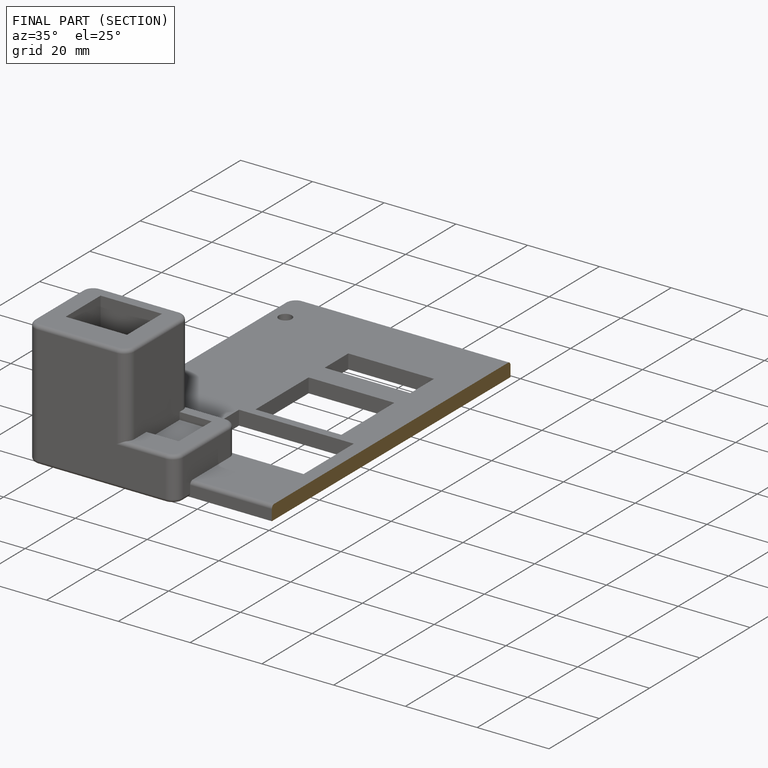
[diagram: finished part — half-section view (interior)]
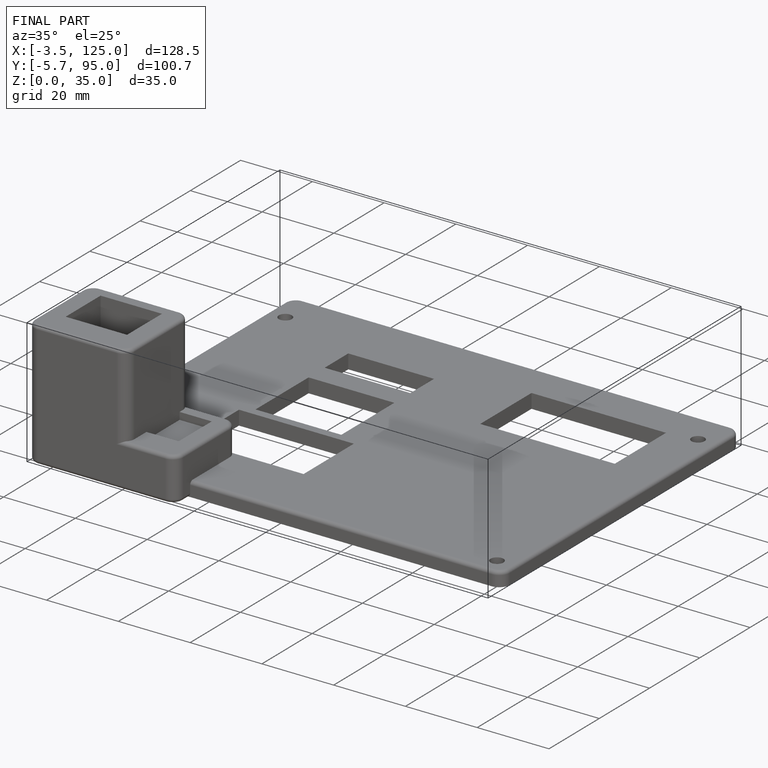
[diagram: finished part — iso view with bounding-box wireframe]
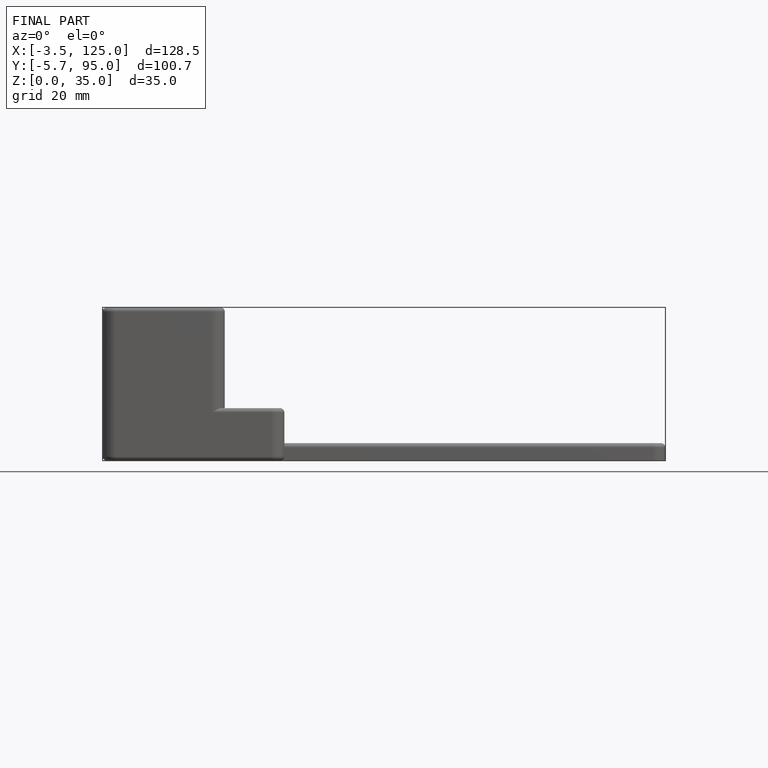
[diagram: finished part — front view with bounding-box wireframe]
